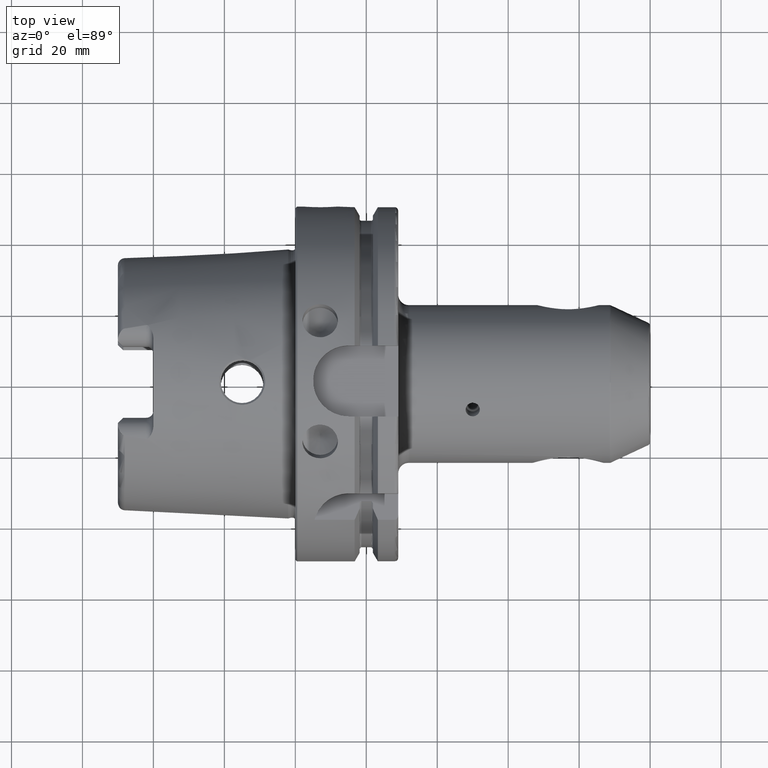
[diagram: clean part render]
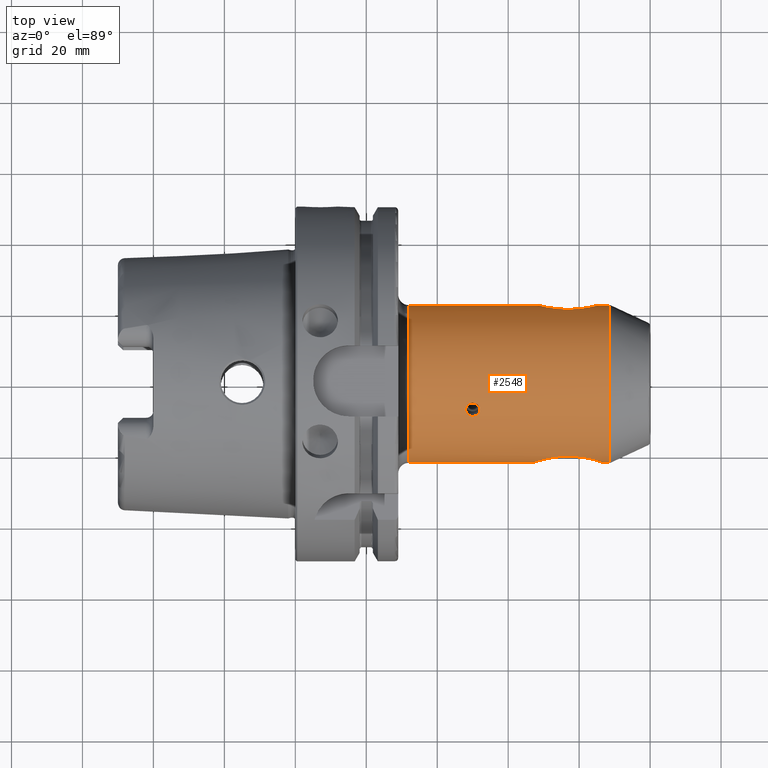
[diagram: same view with one face highlighted and labeled with its STEP entity id]
A machine part, top view. The second image highlights one B-rep face of the part: STEP entity #2548.
In plain terms, the highlighted cylindrical surface (bore or boss wall) has radius 22.225 mm, axis along (1, 0, 0).
Its self-contained STEP definition (entity closure, byte-faithful):
#92=FACE_BOUND('',#782,.T.);
#93=FACE_BOUND('',#783,.T.);
#169=LINE('',#4261,#293);
#170=LINE('',#4262,#294);
#293=VECTOR('',#3136,22.225);
#294=VECTOR('',#3137,22.225);
#423=CIRCLE('',#2729,22.225);
#427=CIRCLE('',#2733,22.225);
#428=CIRCLE('',#2734,22.225);
#429=CIRCLE('',#2736,22.225);
#430=CIRCLE('',#2737,22.225);
#431=CIRCLE('',#2738,22.225);
#591=CYLINDRICAL_SURFACE('',#2735,22.225);
#644=FACE_OUTER_BOUND('',#781,.T.);
#781=EDGE_LOOP('',(#1819,#1820,#1821,#1822,#1823,#1824,#1825,#1826,#1827,
#1828,#1829,#1830,#1831));
#782=EDGE_LOOP('',(#1832,#1833));
#783=EDGE_LOOP('',(#1834,#1835));
#914=B_SPLINE_CURVE_WITH_KNOTS('',3,(#3786,#3787,#3788,#3789,#3790,#3791,
#3792,#3793,#3794,#3795,#3796,#3797,#3798,#3799),.UNSPECIFIED.,.F.,.F.,
(4,2,2,2,2,2,4),(0.,0.251022335495543,0.502044670991086,0.75306700648663,
1.00408934198217,1.21360063972312,1.42311193746407),.UNSPECIFIED.);
#915=B_SPLINE_CURVE_WITH_KNOTS('',3,(#3801,#3802,#3803,#3804,#3805,#3806,
#3807,#3808,#3809,#3810,#3811,#3812,#3813,#3814),.UNSPECIFIED.,.F.,.F.,
(4,2,2,2,2,2,4),(4.26933581239221,4.47884711013315,4.6883584078741,4.93938074336964,
5.19040307886519,5.44142541436073,5.69244774985627),.UNSPECIFIED.);
#916=B_SPLINE_CURVE_WITH_KNOTS('',3,(#3815,#3816,#3817,#3818,#3819,#3820,
#3821,#3822,#3823,#3824,#3825,#3826,#3827,#3828,#3829,#3830,#3831,#3832,
#3833,#3834,#3835,#3836,#3837,#3838,#3839,#3840),.UNSPECIFIED.,.F.,.F.,
(4,2,2,2,2,2,2,2,2,2,2,2,4),(1.42311193746407,1.63262323520502,1.84213453294596,
2.09315686844151,2.34417920393705,2.59520153943259,2.84622387492814,3.09724621042368,
3.34826854591922,3.59929088141477,3.85031321691031,4.05982451465126,4.26933581239221),
 .UNSPECIFIED.);
#919=B_SPLINE_CURVE_WITH_KNOTS('',3,(#3902,#3903,#3904,#3905,#3906,#3907,
#3908,#3909,#3910,#3911),.UNSPECIFIED.,.F.,.F.,(4,2,2,2,4),(0.,0.301851661106168,
0.603703322212337,0.91799010970311,1.23227689719388),.UNSPECIFIED.);
#920=B_SPLINE_CURVE_WITH_KNOTS('',3,(#3912,#3913,#3914,#3915,#3916,#3917,
#3918,#3919,#3920,#3921,#3922,#3923,#3924,#3925,#3926,#3927,#3928,#3929,
#3930,#3931,#3932,#3933,#3934,#3935,#3936,#3937),.UNSPECIFIED.,.F.,.F.,
(4,2,2,2,2,2,2,2,2,2,2,2,4),(1.23227689719388,1.54656368468466,1.86085047217543,
2.1627021332816,2.46455379438777,2.76640545549393,3.0682571166001,3.38254390409088,
3.69683069158165,4.01111747907242,4.3254042665632,4.62725592766937,4.92910758877553),
 .UNSPECIFIED.);
#935=B_SPLINE_CURVE_WITH_KNOTS('',3,(#4188,#4189,#4190,#4191,#4192,#4193,
#4194,#4195,#4196,#4197),.UNSPECIFIED.,.F.,.F.,(4,2,2,2,4),(0.,0.0753811904788998,
0.1507623809578,0.226143403479418,0.301524426001037),.UNSPECIFIED.);
#936=B_SPLINE_CURVE_WITH_KNOTS('',3,(#4198,#4199,#4200,#4201,#4202,#4203,
#4204,#4205,#4206,#4207,#4208,#4209,#4210,#4211,#4212,#4213,#4214,#4215,
#4216,#4217,#4218,#4219,#4220,#4221,#4222,#4223),.UNSPECIFIED.,.F.,.F.,
(4,2,2,2,2,2,2,2,2,2,2,2,4),(0.301524426001037,0.376905448522657,0.452286471044276,
0.527667661523175,0.603048852002075,0.678430042480974,0.753811232959874,
0.829192255481493,0.904573278003112,0.979954300524731,1.05533532304635,
1.13071651352525,1.20609770400415),.UNSPECIFIED.);
#995=VERTEX_POINT('',#3784);
#996=VERTEX_POINT('',#3785);
#997=VERTEX_POINT('',#3800);
#1004=VERTEX_POINT('',#3899);
#1005=VERTEX_POINT('',#3901);
#1040=VERTEX_POINT('',#4186);
#1041=VERTEX_POINT('',#4187);
#1047=VERTEX_POINT('',#4244);
#1048=VERTEX_POINT('',#4245);
#1051=VERTEX_POINT('',#4252);
#1052=VERTEX_POINT('',#4256);
#1053=VERTEX_POINT('',#4257);
#1054=VERTEX_POINT('',#4259);
#1284=EDGE_CURVE('',#995,#996,#914,.T.);
#1285=EDGE_CURVE('',#997,#995,#915,.T.);
#1286=EDGE_CURVE('',#996,#997,#916,.T.);
#1295=EDGE_CURVE('',#1005,#1004,#919,.T.);
#1296=EDGE_CURVE('',#1004,#1005,#920,.T.);
#1339=EDGE_CURVE('',#1040,#1041,#935,.T.);
#1340=EDGE_CURVE('',#1041,#1040,#936,.T.);
#1352=EDGE_CURVE('',#1047,#1048,#423,.T.);
#1356=EDGE_CURVE('',#1048,#1051,#427,.T.);
#1357=EDGE_CURVE('',#1051,#1047,#428,.T.);
#1358=EDGE_CURVE('',#1052,#1053,#429,.T.);
#1359=EDGE_CURVE('',#1054,#1052,#430,.T.);
#1360=EDGE_CURVE('',#1054,#997,#169,.T.);
#1361=EDGE_CURVE('',#996,#1051,#170,.T.);
#1362=EDGE_CURVE('',#1053,#1054,#431,.T.);
#1819=ORIENTED_EDGE('',*,*,#1358,.F.);
#1820=ORIENTED_EDGE('',*,*,#1359,.F.);
#1821=ORIENTED_EDGE('',*,*,#1360,.T.);
#1822=ORIENTED_EDGE('',*,*,#1285,.T.);
#1823=ORIENTED_EDGE('',*,*,#1284,.T.);
#1824=ORIENTED_EDGE('',*,*,#1361,.T.);
#1825=ORIENTED_EDGE('',*,*,#1356,.F.);
#1826=ORIENTED_EDGE('',*,*,#1352,.F.);
#1827=ORIENTED_EDGE('',*,*,#1357,.F.);
#1828=ORIENTED_EDGE('',*,*,#1361,.F.);
#1829=ORIENTED_EDGE('',*,*,#1286,.T.);
#1830=ORIENTED_EDGE('',*,*,#1360,.F.);
#1831=ORIENTED_EDGE('',*,*,#1362,.F.);
#1832=ORIENTED_EDGE('',*,*,#1295,.T.);
#1833=ORIENTED_EDGE('',*,*,#1296,.T.);
#1834=ORIENTED_EDGE('',*,*,#1339,.T.);
#1835=ORIENTED_EDGE('',*,*,#1340,.T.);
#2548=ADVANCED_FACE('',(#644,#92,#93),#591,.T.);
#2729=AXIS2_PLACEMENT_3D('',#4246,#3118,#3119);
#2733=AXIS2_PLACEMENT_3D('',#4253,#3126,#3127);
#2734=AXIS2_PLACEMENT_3D('',#4254,#3128,#3129);
#2735=AXIS2_PLACEMENT_3D('',#4255,#3130,#3131);
#2736=AXIS2_PLACEMENT_3D('',#4258,#3132,#3133);
#2737=AXIS2_PLACEMENT_3D('',#4260,#3134,#3135);
#2738=AXIS2_PLACEMENT_3D('',#4263,#3138,#3139);
#3118=DIRECTION('center_axis',(-1.,0.,0.));
#3119=DIRECTION('ref_axis',(0.,-1.,-1.22464679914735E-16));
#3126=DIRECTION('center_axis',(-1.,0.,0.));
#3127=DIRECTION('ref_axis',(0.,-1.,-1.22464679914735E-16));
#3128=DIRECTION('center_axis',(-1.,0.,0.));
#3129=DIRECTION('ref_axis',(0.,-1.,-1.22464679914735E-16));
#3130=DIRECTION('center_axis',(1.,0.,0.));
#3131=DIRECTION('ref_axis',(0.,1.,0.));
#3132=DIRECTION('center_axis',(1.,0.,0.));
#3133=DIRECTION('ref_axis',(0.,-1.,1.83697019872103E-16));
#3134=DIRECTION('center_axis',(1.,0.,0.));
#3135=DIRECTION('ref_axis',(0.,-1.,1.83697019872103E-16));
#3136=DIRECTION('',(-1.,0.,0.));
#3137=DIRECTION('',(-1.,0.,0.));
#3138=DIRECTION('center_axis',(1.,0.,0.));
#3139=DIRECTION('ref_axis',(0.,-1.,1.83697019872103E-16));
#3784=CARTESIAN_POINT('',(76.9,-20.5429142136249,-8.48170387431961));
#3785=CARTESIAN_POINT('',(66.9,-22.225,-2.74866753633394E-15));
#3786=CARTESIAN_POINT('Ctrl Pts',(76.9,-20.5429142136249,-8.48170387431961));
#3787=CARTESIAN_POINT('Ctrl Pts',(76.0632588816815,-20.5429142136249,-8.48170387431961));
#3788=CARTESIAN_POINT('Ctrl Pts',(75.2032339911403,-20.5793750899531,-8.39511661671729));
#3789=CARTESIAN_POINT('Ctrl Pts',(73.5163246992267,-20.7235339420118,-8.03267098530732));
#3790=CARTESIAN_POINT('Ctrl Pts',(72.6894026665849,-20.8310615424678,-7.75692002051757));
#3791=CARTESIAN_POINT('Ctrl Pts',(71.1418143430286,-21.0905670050855,-7.0207509706169));
#3792=CARTESIAN_POINT('Ctrl Pts',(70.4198227182098,-21.2424011055724,-6.55977327389368));
#3793=CARTESIAN_POINT('Ctrl Pts',(69.1420092880798,-21.5484351250174,-5.47130459497773));
#3794=CARTESIAN_POINT('Ctrl Pts',(68.5860279358357,-21.7022357241486,-4.843888684673));
#3795=CARTESIAN_POINT('Ctrl Pts',(67.7645967777705,-21.9443598669959,-3.56984161148491));
#3796=CARTESIAN_POINT('Ctrl Pts',(67.4370218806339,-22.0484008786661,-2.88770634190615));
#3797=CARTESIAN_POINT('Ctrl Pts',(67.0045103082746,-22.1892381120218,-1.45208588003658));
#3798=CARTESIAN_POINT('Ctrl Pts',(66.9,-22.225,-0.698370992469829));
#3799=CARTESIAN_POINT('Ctrl Pts',(66.9,-22.225,-2.77555756156289E-15));
#3800=CARTESIAN_POINT('',(86.9,-22.225,-2.81805647537301E-15));
#3801=CARTESIAN_POINT('Ctrl Pts',(86.9,-22.225,-2.4980018054066E-15));
#3802=CARTESIAN_POINT('Ctrl Pts',(86.9,-22.225,-0.69837099246983));
#3803=CARTESIAN_POINT('Ctrl Pts',(86.7954896917254,-22.1892381120218,-1.45208588003658));
#3804=CARTESIAN_POINT('Ctrl Pts',(86.3629781193661,-22.0484008786661,-2.88770634190615));
#3805=CARTESIAN_POINT('Ctrl Pts',(86.0354032222294,-21.9443598669959,-3.56984161148491));
#3806=CARTESIAN_POINT('Ctrl Pts',(85.2139720641643,-21.7022357241486,-4.843888684673));
#3807=CARTESIAN_POINT('Ctrl Pts',(84.6579907119202,-21.5484351250174,-5.47130459497774));
#3808=CARTESIAN_POINT('Ctrl Pts',(83.3801772817902,-21.2424011055724,-6.55977327389368));
#3809=CARTESIAN_POINT('Ctrl Pts',(82.6581856569714,-21.0905670050855,-7.0207509706169));
#3810=CARTESIAN_POINT('Ctrl Pts',(81.1105973334151,-20.8310615424678,-7.75692002051757));
#3811=CARTESIAN_POINT('Ctrl Pts',(80.2836753007733,-20.7235339420118,-8.03267098530732));
#3812=CARTESIAN_POINT('Ctrl Pts',(78.5967660088597,-20.5793750899531,-8.39511661671729));
#3813=CARTESIAN_POINT('Ctrl Pts',(77.7367411183185,-20.5429142136249,-8.48170387431961));
#3814=CARTESIAN_POINT('Ctrl Pts',(76.9,-20.5429142136249,-8.48170387431961));
#3815=CARTESIAN_POINT('Ctrl Pts',(66.9,-22.225,-2.77555756156289E-15));
#3816=CARTESIAN_POINT('Ctrl Pts',(66.9,-22.225,0.698370992469823));
#3817=CARTESIAN_POINT('Ctrl Pts',(67.0045103082746,-22.1892381120218,1.45208588003657));
#3818=CARTESIAN_POINT('Ctrl Pts',(67.4370218806339,-22.0484008786661,2.88770634190614));
#3819=CARTESIAN_POINT('Ctrl Pts',(67.7645967777705,-21.9443598669959,3.56984161148491));
#3820=CARTESIAN_POINT('Ctrl Pts',(68.5860279358357,-21.7022357241486,4.843888684673));
#3821=CARTESIAN_POINT('Ctrl Pts',(69.1420092880797,-21.5484351250174,5.47130459497774));
#3822=CARTESIAN_POINT('Ctrl Pts',(70.4198227182098,-21.2424011055724,6.55977327389369));
#3823=CARTESIAN_POINT('Ctrl Pts',(71.1418143430286,-21.0905670050854,7.0207509706169));
#3824=CARTESIAN_POINT('Ctrl Pts',(72.6894026665849,-20.8310615424678,7.75692002051757));
#3825=CARTESIAN_POINT('Ctrl Pts',(73.5163246992267,-20.7235339420118,8.03267098530732));
#3826=CARTESIAN_POINT('Ctrl Pts',(75.2032339911403,-20.5793750899531,8.39511661671729));
#3827=CARTESIAN_POINT('Ctrl Pts',(76.0632588816815,-20.5429142136249,8.48170387431961));
#3828=CARTESIAN_POINT('Ctrl Pts',(77.7367411183185,-20.5429142136249,8.48170387431961));
#3829=CARTESIAN_POINT('Ctrl Pts',(78.5967660088597,-20.5793750899531,8.39511661671728));
#3830=CARTESIAN_POINT('Ctrl Pts',(80.2836753007733,-20.7235339420118,8.03267098530731));
#3831=CARTESIAN_POINT('Ctrl Pts',(81.1105973334151,-20.8310615424678,7.75692002051757));
#3832=CARTESIAN_POINT('Ctrl Pts',(82.6581856569714,-21.0905670050855,7.0207509706169));
#3833=CARTESIAN_POINT('Ctrl Pts',(83.3801772817902,-21.2424011055724,6.55977327389368));
#3834=CARTESIAN_POINT('Ctrl Pts',(84.6579907119202,-21.5484351250174,5.47130459497774));
#3835=CARTESIAN_POINT('Ctrl Pts',(85.2139720641643,-21.7022357241486,4.843888684673));
#3836=CARTESIAN_POINT('Ctrl Pts',(86.0354032222295,-21.9443598669959,3.56984161148491));
#3837=CARTESIAN_POINT('Ctrl Pts',(86.3629781193661,-22.0484008786661,2.88770634190615));
#3838=CARTESIAN_POINT('Ctrl Pts',(86.7954896917254,-22.1892381120218,1.45208588003657));
#3839=CARTESIAN_POINT('Ctrl Pts',(86.9,-22.225,0.698370992469825));
#3840=CARTESIAN_POINT('Ctrl Pts',(86.9,-22.225,-3.19189119579733E-15));
#3899=CARTESIAN_POINT('',(85.65,22.225,-1.07156594925393E-15));
#3901=CARTESIAN_POINT('',(76.9,20.9354366898856,-7.4604366898856));
#3902=CARTESIAN_POINT('Ctrl Pts',(76.9,20.9354366898856,-7.4604366898856));
#3903=CARTESIAN_POINT('Ctrl Pts',(77.9061722036872,20.9354366898856,-7.4604366898856));
#3904=CARTESIAN_POINT('Ctrl Pts',(78.9893833020825,20.9943186115491,-7.30157010592936));
#3905=CARTESIAN_POINT('Ctrl Pts',(81.027912515512,21.2148597939984,-6.63355667242726));
#3906=CARTESIAN_POINT('Ctrl Pts',(81.9835868321044,21.3736986652334,-6.12456871477102));
#3907=CARTESIAN_POINT('Ctrl Pts',(83.5878045973527,21.6919750382033,-4.88228907222385));
#3908=CARTESIAN_POINT('Ctrl Pts',(84.3403583757877,21.8750621939844,-4.04580739927059));
#3909=CARTESIAN_POINT('Ctrl Pts',(85.3724506902713,22.1439121902776,-2.12933585070756));
#3910=CARTESIAN_POINT('Ctrl Pts',(85.65,22.225,-1.04762262496925));
#3911=CARTESIAN_POINT('Ctrl Pts',(85.65,22.225,-1.2490009027033E-15));
#3912=CARTESIAN_POINT('Ctrl Pts',(85.65,22.225,-6.93889390390723E-16));
#3913=CARTESIAN_POINT('Ctrl Pts',(85.65,22.225,1.04762262496924));
#3914=CARTESIAN_POINT('Ctrl Pts',(85.3724506902713,22.1439121902776,2.12933585070756));
#3915=CARTESIAN_POINT('Ctrl Pts',(84.3403583757877,21.8750621939844,4.04580739927059));
#3916=CARTESIAN_POINT('Ctrl Pts',(83.5878045973527,21.6919750382033,4.88228907222385));
#3917=CARTESIAN_POINT('Ctrl Pts',(81.9835868321044,21.3736986652334,6.12456871477102));
#3918=CARTESIAN_POINT('Ctrl Pts',(81.027912515512,21.2148597939984,6.63355667242726));
#3919=CARTESIAN_POINT('Ctrl Pts',(78.9893833020825,20.9943186115491,7.30157010592936));
#3920=CARTESIAN_POINT('Ctrl Pts',(77.9061722036872,20.9354366898856,7.4604366898856));
#3921=CARTESIAN_POINT('Ctrl Pts',(75.8938277963128,20.9354366898856,7.4604366898856));
#3922=CARTESIAN_POINT('Ctrl Pts',(74.8106166979175,20.9943186115491,7.30157010592936));
#3923=CARTESIAN_POINT('Ctrl Pts',(72.772087484488,21.2148597939984,6.63355667242726));
#3924=CARTESIAN_POINT('Ctrl Pts',(71.8164131678956,21.3736986652334,6.12456871477102));
#3925=CARTESIAN_POINT('Ctrl Pts',(70.2121954026473,21.6919750382033,4.88228907222386));
#3926=CARTESIAN_POINT('Ctrl Pts',(69.4596416242123,21.8750621939844,4.04580739927061));
#3927=CARTESIAN_POINT('Ctrl Pts',(68.4275493097287,22.1439121902775,2.12933585070756));
#3928=CARTESIAN_POINT('Ctrl Pts',(68.15,22.225,1.04762262496925));
#3929=CARTESIAN_POINT('Ctrl Pts',(68.15,22.225,-1.04762262496924));
#3930=CARTESIAN_POINT('Ctrl Pts',(68.4275493097287,22.1439121902775,-2.12933585070756));
#3931=CARTESIAN_POINT('Ctrl Pts',(69.4596416242123,21.8750621939844,-4.0458073992706));
#3932=CARTESIAN_POINT('Ctrl Pts',(70.2121954026473,21.6919750382033,-4.88228907222385));
#3933=CARTESIAN_POINT('Ctrl Pts',(71.8164131678955,21.3736986652334,-6.12456871477101));
#3934=CARTESIAN_POINT('Ctrl Pts',(72.772087484488,21.2148597939984,-6.63355667242725));
#3935=CARTESIAN_POINT('Ctrl Pts',(74.8106166979175,20.9943186115491,-7.30157010592936));
#3936=CARTESIAN_POINT('Ctrl Pts',(75.8938277963127,20.9354366898856,-7.4604366898856));
#3937=CARTESIAN_POINT('Ctrl Pts',(76.9,20.9354366898856,-7.4604366898856));
#4186=CARTESIAN_POINT('',(50.,-5.69117191480973,21.4839751265002));
#4187=CARTESIAN_POINT('',(52.,-7.60139768541299,20.8846684969668));
#4188=CARTESIAN_POINT('Ctrl Pts',(50.,-5.69117191480973,21.4839751265002));
#4189=CARTESIAN_POINT('Ctrl Pts',(50.2512706349297,-5.69117191480973,21.4839751265002));
#4190=CARTESIAN_POINT('Ctrl Pts',(50.5191964173685,-5.74000025217041,21.4712252536331));
#4191=CARTESIAN_POINT('Ctrl Pts',(51.0119146468954,-5.93766297366463,21.4174058924408));
#4192=CARTESIAN_POINT('Ctrl Pts',(51.2367186999807,-6.08640571272945,21.3761063574697));
#4193=CARTESIAN_POINT('Ctrl Pts',(51.5917080292881,-6.42772799650269,21.2759622618536));
#4194=CARTESIAN_POINT('Ctrl Pts',(51.7456060640989,-6.64309374899895,21.2103912150828));
#4195=CARTESIAN_POINT('Ctrl Pts',(51.9497558029958,-7.11190620440034,21.0578294274045));
#4196=CARTESIAN_POINT('Ctrl Pts',(52.,-7.36528105004344,20.9706079240564));
#4197=CARTESIAN_POINT('Ctrl Pts',(52.,-7.60139768541298,20.8846684969668));
#4198=CARTESIAN_POINT('Ctrl Pts',(52.,-7.60139768541298,20.8846684969668));
#4199=CARTESIAN_POINT('Ctrl Pts',(52.,-7.83751432078252,20.7987290698772));
#4200=CARTESIAN_POINT('Ctrl Pts',(51.9497558029959,-8.08767561496392,20.7026784064519));
#4201=CARTESIAN_POINT('Ctrl Pts',(51.745606064099,-8.54487161812034,20.5182006785364));
#4202=CARTESIAN_POINT('Ctrl Pts',(51.5917080292881,-8.75199961247668,20.4299965772892));
#4203=CARTESIAN_POINT('Ctrl Pts',(51.2367186999807,-9.07783903511917,20.2873136703278));
#4204=CARTESIAN_POINT('Ctrl Pts',(51.0119146468954,-9.21832941319931,20.2233409598941));
#4205=CARTESIAN_POINT('Ctrl Pts',(50.5191964173685,-9.40434226114739,20.1375138341943));
#4206=CARTESIAN_POINT('Ctrl Pts',(50.2512706349297,-9.44994239795336,20.1158945531976));
#4207=CARTESIAN_POINT('Ctrl Pts',(49.7487293650703,-9.44994239795336,20.1158945531976));
#4208=CARTESIAN_POINT('Ctrl Pts',(49.4808035826315,-9.40434226114739,20.1375138341943));
#4209=CARTESIAN_POINT('Ctrl Pts',(48.9880853531046,-9.21832941319931,20.2233409598941));
#4210=CARTESIAN_POINT('Ctrl Pts',(48.7632813000193,-9.07783903511918,20.2873136703278));
#4211=CARTESIAN_POINT('Ctrl Pts',(48.4082919707119,-8.75199961247669,20.4299965772892));
#4212=CARTESIAN_POINT('Ctrl Pts',(48.2543939359011,-8.54487161812034,20.5182006785364));
#4213=CARTESIAN_POINT('Ctrl Pts',(48.0502441970042,-8.08767561496393,20.7026784064519));
#4214=CARTESIAN_POINT('Ctrl Pts',(48.,-7.83751432078252,20.7987290698772));
#4215=CARTESIAN_POINT('Ctrl Pts',(48.,-7.36528105004344,20.9706079240564));
#4216=CARTESIAN_POINT('Ctrl Pts',(48.0502441970042,-7.11190620440034,21.0578294274045));
#4217=CARTESIAN_POINT('Ctrl Pts',(48.2543939359011,-6.64309374899895,21.2103912150828));
#4218=CARTESIAN_POINT('Ctrl Pts',(48.4082919707119,-6.42772799650269,21.2759622618536));
#4219=CARTESIAN_POINT('Ctrl Pts',(48.7632813000193,-6.08640571272945,21.3761063574697));
#4220=CARTESIAN_POINT('Ctrl Pts',(48.9880853531046,-5.93766297366463,21.4174058924408));
#4221=CARTESIAN_POINT('Ctrl Pts',(49.4808035826315,-5.74000025217041,21.4712252536331));
#4222=CARTESIAN_POINT('Ctrl Pts',(49.7487293650703,-5.69117191480972,21.4839751265002));
#4223=CARTESIAN_POINT('Ctrl Pts',(50.,-5.69117191480972,21.4839751265002));
#4244=CARTESIAN_POINT('',(32.,22.225,0.));
#4245=CARTESIAN_POINT('',(32.,-2.72177751110499E-15,-22.225));
#4246=CARTESIAN_POINT('Origin',(32.,0.,0.));
#4252=CARTESIAN_POINT('',(32.,-22.225,-2.72177751110499E-15));
#4253=CARTESIAN_POINT('Origin',(32.,0.,0.));
#4254=CARTESIAN_POINT('Origin',(32.,0.,0.));
#4255=CARTESIAN_POINT('Origin',(58.8974756701688,0.,0.));
#4256=CARTESIAN_POINT('',(88.5732566776946,22.225,-1.3608887555525E-15));
#4257=CARTESIAN_POINT('',(88.5732566776946,-2.72177751110499E-15,22.225));
#4258=CARTESIAN_POINT('Origin',(88.5732566776946,0.,0.));
#4259=CARTESIAN_POINT('',(88.5732566776946,-22.225,-2.72177751110499E-15));
#4260=CARTESIAN_POINT('Origin',(88.5732566776946,0.,0.));
#4261=CARTESIAN_POINT('',(58.8974756701688,-22.225,-2.72177751110499E-15));
#4262=CARTESIAN_POINT('',(58.8974756701688,-22.225,-2.72177751110499E-15));
#4263=CARTESIAN_POINT('Origin',(88.5732566776946,0.,0.));